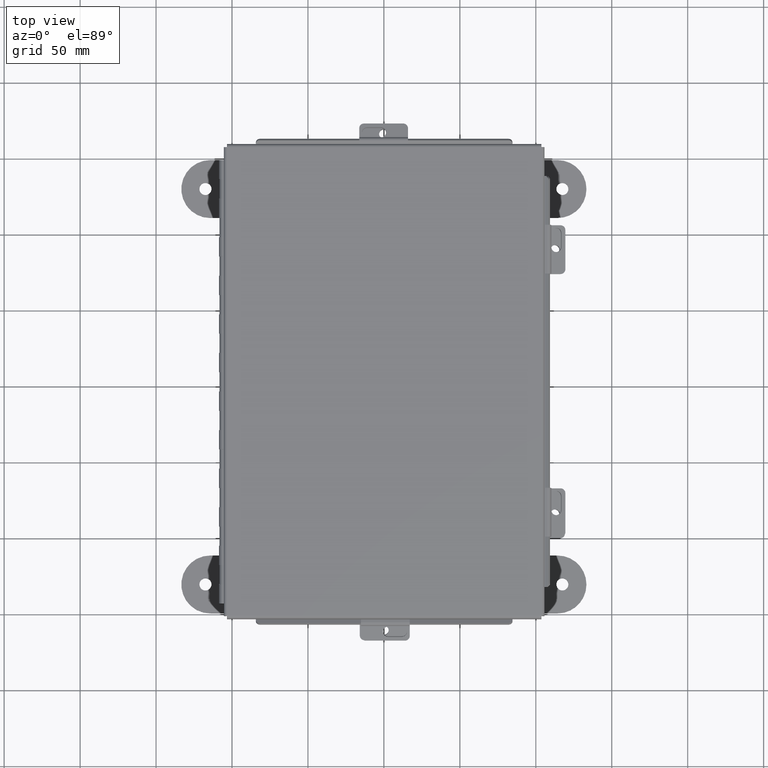
[diagram: clean part render]
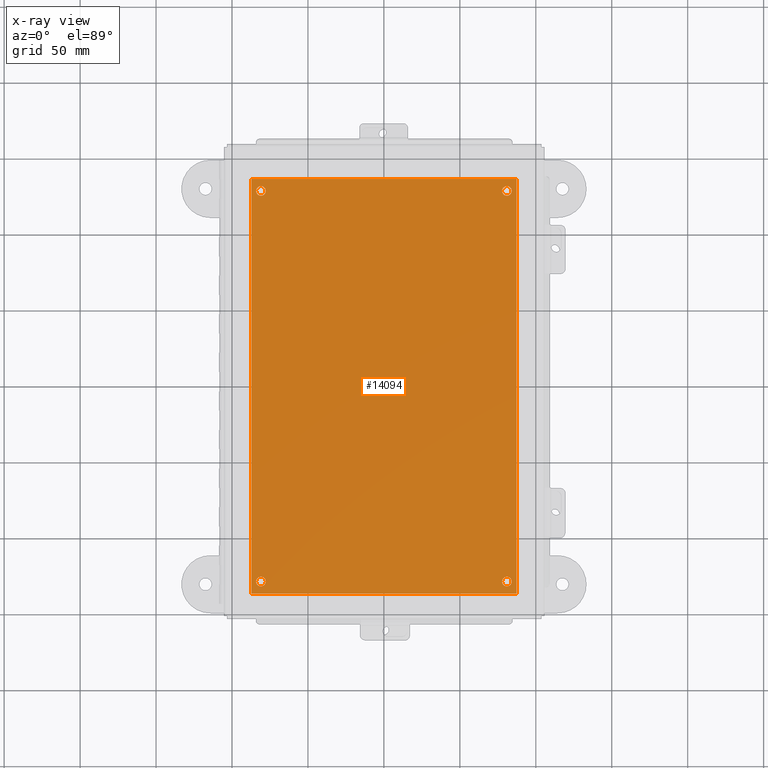
[diagram: x-ray — body ghosted, one internal face saturated and labeled with its STEP entity id]
A machine part, top view, then the same camera in x-ray: the body is ghosted and one INTERNAL B-rep face — a face not visible from any outside direction — is saturated and labeled: STEP entity #14094.
In plain terms, the highlighted planar face has unit normal (0, 0, -1).
Its self-contained STEP definition (entity closure, byte-faithful):
#116 = EDGE_CURVE ( 'NONE', #222, #1728, #1163, .T. ) ;
#192 = FACE_OUTER_BOUND ( 'NONE', #2219, .T. ) ;
#222 = VERTEX_POINT ( 'NONE', #7273 ) ;
#234 = EDGE_CURVE ( 'NONE', #1728, #15118, #5382, .T. ) ;
#427 = VECTOR ( 'NONE', #8288, 39.37007874015748100 ) ;
#480 = AXIS2_PLACEMENT_3D ( 'NONE', #13251, #7160, #15695 ) ;
#587 = FACE_BOUND ( 'NONE', #11640, .T. ) ;
#654 = DIRECTION ( 'NONE',  ( -1.000000000000000000, 0.0000000000000000000, 0.0000000000000000000 ) ) ;
#819 = AXIS2_PLACEMENT_3D ( 'NONE', #2338, #10888, #3566 ) ;
#946 = VERTEX_POINT ( 'NONE', #15440 ) ;
#1033 = ORIENTED_EDGE ( 'NONE', *, *, #2745, .F. ) ;
#1146 = EDGE_LOOP ( 'NONE', ( #3948, #10624 ) ) ;
#1163 = LINE ( 'NONE', #4601, #427 ) ;
#1255 = DIRECTION ( 'NONE',  ( -0.0000000000000000000, -0.0000000000000000000, 1.000000000000000000 ) ) ;
#1458 = CARTESIAN_POINT ( 'NONE',  ( 0.0000000000000000000, 10.75000000000000200, -0.07470000000000003000 ) ) ;
#1490 = ORIENTED_EDGE ( 'NONE', *, *, #234, .F. ) ;
#1558 = ORIENTED_EDGE ( 'NONE', *, *, #116, .F. ) ;
#1610 = CARTESIAN_POINT ( 'NONE',  ( 6.500000000000002700, 0.3120000000000036600, -0.07470000000000003000 ) ) ;
#1728 = VERTEX_POINT ( 'NONE', #11351 ) ;
#2219 = EDGE_LOOP ( 'NONE', ( #15454, #1033, #1490, #1558 ) ) ;
#2338 = CARTESIAN_POINT ( 'NONE',  ( 6.625000000000002700, 0.3120000000000036600, -0.07470000000000003000 ) ) ;
#2496 = VECTOR ( 'NONE', #3624, 39.37007874015748100 ) ;
#2499 = AXIS2_PLACEMENT_3D ( 'NONE', #6452, #14984, #7676 ) ;
#2563 = VECTOR ( 'NONE', #13840, 39.37007874015748100 ) ;
#2745 = EDGE_CURVE ( 'NONE', #15118, #7660, #12772, .T. ) ;
#2874 = CARTESIAN_POINT ( 'NONE',  ( 0.2500000000000020000, 0.3120000000000015000, -0.07470000000000003000 ) ) ;
#3424 = FACE_BOUND ( 'NONE', #14770, .T. ) ;
#3438 = CARTESIAN_POINT ( 'NONE',  ( 6.625000000000000900, 10.43799999999999900, -0.07470000000000003000 ) ) ;
#3566 = DIRECTION ( 'NONE',  ( -1.000000000000000000, 0.0000000000000000000, 0.0000000000000000000 ) ) ;
#3624 = DIRECTION ( 'NONE',  ( 0.0000000000000000000, 1.000000000000000000, 0.0000000000000000000 ) ) ;
#3810 = VERTEX_POINT ( 'NONE', #12107 ) ;
#3948 = ORIENTED_EDGE ( 'NONE', *, *, #14192, .T. ) ;
#4119 = DIRECTION ( 'NONE',  ( -1.000000000000000000, 0.0000000000000000000, 0.0000000000000000000 ) ) ;
#4215 = CARTESIAN_POINT ( 'NONE',  ( 0.3750000000000020000, 0.3120000000000015000, -0.07470000000000003000 ) ) ;
#4217 = VERTEX_POINT ( 'NONE', #13979 ) ;
#4601 = CARTESIAN_POINT ( 'NONE',  ( 0.0000000000000000000, 0.0000000000000000000, -0.07470000000000003000 ) ) ;
#4673 = DIRECTION ( 'NONE',  ( -1.000000000000000000, 0.0000000000000000000, 0.0000000000000000000 ) ) ;
#4781 = VERTEX_POINT ( 'NONE', #7563 ) ;
#4870 = CIRCLE ( 'NONE', #5128, 0.1250000000000000600 ) ;
#4936 = CARTESIAN_POINT ( 'NONE',  ( 0.2500000000000020000, 0.3120000000000015000, -0.07470000000000003000 ) ) ;
#5028 = ORIENTED_EDGE ( 'NONE', *, *, #14447, .T. ) ;
#5035 = CIRCLE ( 'NONE', #11225, 0.1249999999999993500 ) ;
#5128 = AXIS2_PLACEMENT_3D ( 'NONE', #4936, #13507, #6185 ) ;
#5363 = ORIENTED_EDGE ( 'NONE', *, *, #8541, .T. ) ;
#5382 = LINE ( 'NONE', #11160, #2496 ) ;
#5693 = VERTEX_POINT ( 'NONE', #4215 ) ;
#5864 = DIRECTION ( 'NONE',  ( -0.0000000000000000000, -0.0000000000000000000, 1.000000000000000000 ) ) ;
#6028 = CIRCLE ( 'NONE', #9744, 0.1250000000000004400 ) ;
#6085 = EDGE_CURVE ( 'NONE', #12054, #4217, #13554, .T. ) ;
#6185 = DIRECTION ( 'NONE',  ( -1.000000000000000000, 0.0000000000000000000, 0.0000000000000000000 ) ) ;
#6190 = AXIS2_PLACEMENT_3D ( 'NONE', #8577, #1255, #9818 ) ;
#6452 = CARTESIAN_POINT ( 'NONE',  ( 0.2500000000000003300, 10.43799999999999900, -0.07470000000000003000 ) ) ;
#6698 = FACE_BOUND ( 'NONE', #1146, .T. ) ;
#6720 = AXIS2_PLACEMENT_3D ( 'NONE', #15254, #7948, #654 ) ;
#6726 = CARTESIAN_POINT ( 'NONE',  ( 0.0000000000000000000, 10.75000000000000200, -0.07470000000000003000 ) ) ;
#7160 = DIRECTION ( 'NONE',  ( 0.0000000000000000000, 0.0000000000000000000, -1.000000000000000000 ) ) ;
#7273 = CARTESIAN_POINT ( 'NONE',  ( 0.0000000000000000000, 0.0000000000000000000, -0.07470000000000003000 ) ) ;
#7276 = EDGE_CURVE ( 'NONE', #7660, #222, #9085, .T. ) ;
#7432 = ORIENTED_EDGE ( 'NONE', *, *, #7888, .T. ) ;
#7563 = CARTESIAN_POINT ( 'NONE',  ( 6.750000000000003600, 0.3120000000000036600, -0.07470000000000003000 ) ) ;
#7660 = VERTEX_POINT ( 'NONE', #6726 ) ;
#7676 = DIRECTION ( 'NONE',  ( -1.000000000000000000, 0.0000000000000000000, 0.0000000000000000000 ) ) ;
#7741 = CARTESIAN_POINT ( 'NONE',  ( 0.0000000000000000000, 0.0000000000000000000, -0.07470000000000003000 ) ) ;
#7888 = EDGE_CURVE ( 'NONE', #8410, #946, #5035, .T. ) ;
#7948 = DIRECTION ( 'NONE',  ( -0.0000000000000000000, -0.0000000000000000000, 1.000000000000000000 ) ) ;
#8021 = ORIENTED_EDGE ( 'NONE', *, *, #11164, .T. ) ;
#8265 = EDGE_CURVE ( 'NONE', #4781, #15431, #13079, .T. ) ;
#8288 = DIRECTION ( 'NONE',  ( 1.000000000000000000, 0.0000000000000000000, 0.0000000000000000000 ) ) ;
#8410 = VERTEX_POINT ( 'NONE', #8740 ) ;
#8541 = EDGE_CURVE ( 'NONE', #3810, #5693, #14954, .T. ) ;
#8566 = CIRCLE ( 'NONE', #6720, 0.1249999999999993500 ) ;
#8577 = CARTESIAN_POINT ( 'NONE',  ( 0.2500000000000003300, 10.43799999999999900, -0.07470000000000003000 ) ) ;
#8724 = ORIENTED_EDGE ( 'NONE', *, *, #11606, .T. ) ;
#8740 = CARTESIAN_POINT ( 'NONE',  ( 6.750000000000000000, 10.43799999999999900, -0.07470000000000003000 ) ) ;
#8940 = DIRECTION ( 'NONE',  ( -1.000000000000000000, -0.0000000000000000000, -0.0000000000000000000 ) ) ;
#9085 = LINE ( 'NONE', #7741, #2563 ) ;
#9496 = VECTOR ( 'NONE', #8940, 39.37007874015748100 ) ;
#9744 = AXIS2_PLACEMENT_3D ( 'NONE', #13184, #5864, #14410 ) ;
#9818 = DIRECTION ( 'NONE',  ( -1.000000000000000000, 0.0000000000000000000, 0.0000000000000000000 ) ) ;
#9919 = FACE_BOUND ( 'NONE', #11600, .T. ) ;
#10624 = ORIENTED_EDGE ( 'NONE', *, *, #6085, .T. ) ;
#10888 = DIRECTION ( 'NONE',  ( -0.0000000000000000000, -0.0000000000000000000, 1.000000000000000000 ) ) ;
#11160 = CARTESIAN_POINT ( 'NONE',  ( 6.875000000000000000, 0.0000000000000000000, -0.07470000000000003000 ) ) ;
#11164 = EDGE_CURVE ( 'NONE', #5693, #3810, #4870, .T. ) ;
#11225 = AXIS2_PLACEMENT_3D ( 'NONE', #3438, #11999, #4673 ) ;
#11351 = CARTESIAN_POINT ( 'NONE',  ( 6.875000000000000000, 0.0000000000000000000, -0.07470000000000003000 ) ) ;
#11430 = DIRECTION ( 'NONE',  ( -0.0000000000000000000, -0.0000000000000000000, 1.000000000000000000 ) ) ;
#11600 = EDGE_LOOP ( 'NONE', ( #7432, #5028 ) ) ;
#11606 = EDGE_CURVE ( 'NONE', #15431, #4781, #6028, .T. ) ;
#11640 = EDGE_LOOP ( 'NONE', ( #13300, #8724 ) ) ;
#11999 = DIRECTION ( 'NONE',  ( -0.0000000000000000000, -0.0000000000000000000, 1.000000000000000000 ) ) ;
#12019 = PLANE ( 'NONE',  #480 ) ;
#12038 = CIRCLE ( 'NONE', #6190, 0.1250000000000000000 ) ;
#12054 = VERTEX_POINT ( 'NONE', #12756 ) ;
#12107 = CARTESIAN_POINT ( 'NONE',  ( 0.1250000000000019200, 0.3120000000000015000, -0.07470000000000003000 ) ) ;
#12756 = CARTESIAN_POINT ( 'NONE',  ( 0.1250000000000003300, 10.43799999999999900, -0.07470000000000003000 ) ) ;
#12772 = LINE ( 'NONE', #1458, #9496 ) ;
#13079 = CIRCLE ( 'NONE', #819, 0.1250000000000004400 ) ;
#13184 = CARTESIAN_POINT ( 'NONE',  ( 6.625000000000002700, 0.3120000000000036600, -0.07470000000000003000 ) ) ;
#13251 = CARTESIAN_POINT ( 'NONE',  ( 0.0000000000000000000, 0.0000000000000000000, -0.07470000000000003000 ) ) ;
#13300 = ORIENTED_EDGE ( 'NONE', *, *, #8265, .T. ) ;
#13507 = DIRECTION ( 'NONE',  ( -0.0000000000000000000, -0.0000000000000000000, 1.000000000000000000 ) ) ;
#13554 = CIRCLE ( 'NONE', #2499, 0.1250000000000000000 ) ;
#13840 = DIRECTION ( 'NONE',  ( -0.0000000000000000000, -1.000000000000000000, -0.0000000000000000000 ) ) ;
#13919 = AXIS2_PLACEMENT_3D ( 'NONE', #2874, #11430, #4119 ) ;
#13979 = CARTESIAN_POINT ( 'NONE',  ( 0.3750000000000003900, 10.43799999999999900, -0.07470000000000003000 ) ) ;
#14094 = ADVANCED_FACE ( 'NONE', ( #3424, #587, #9919, #6698, #192 ), #12019, .T. ) ;
#14192 = EDGE_CURVE ( 'NONE', #4217, #12054, #12038, .T. ) ;
#14410 = DIRECTION ( 'NONE',  ( -1.000000000000000000, 0.0000000000000000000, 0.0000000000000000000 ) ) ;
#14445 = CARTESIAN_POINT ( 'NONE',  ( 6.875000000000000000, 10.75000000000000200, -0.07470000000000003000 ) ) ;
#14447 = EDGE_CURVE ( 'NONE', #946, #8410, #8566, .T. ) ;
#14770 = EDGE_LOOP ( 'NONE', ( #8021, #5363 ) ) ;
#14954 = CIRCLE ( 'NONE', #13919, 0.1250000000000000600 ) ;
#14984 = DIRECTION ( 'NONE',  ( -0.0000000000000000000, -0.0000000000000000000, 1.000000000000000000 ) ) ;
#15118 = VERTEX_POINT ( 'NONE', #14445 ) ;
#15254 = CARTESIAN_POINT ( 'NONE',  ( 6.625000000000000900, 10.43799999999999900, -0.07470000000000003000 ) ) ;
#15431 = VERTEX_POINT ( 'NONE', #1610 ) ;
#15440 = CARTESIAN_POINT ( 'NONE',  ( 6.500000000000000900, 10.43799999999999900, -0.07470000000000003000 ) ) ;
#15454 = ORIENTED_EDGE ( 'NONE', *, *, #7276, .F. ) ;
#15695 = DIRECTION ( 'NONE',  ( -1.000000000000000000, 0.0000000000000000000, -0.0000000000000000000 ) ) ;